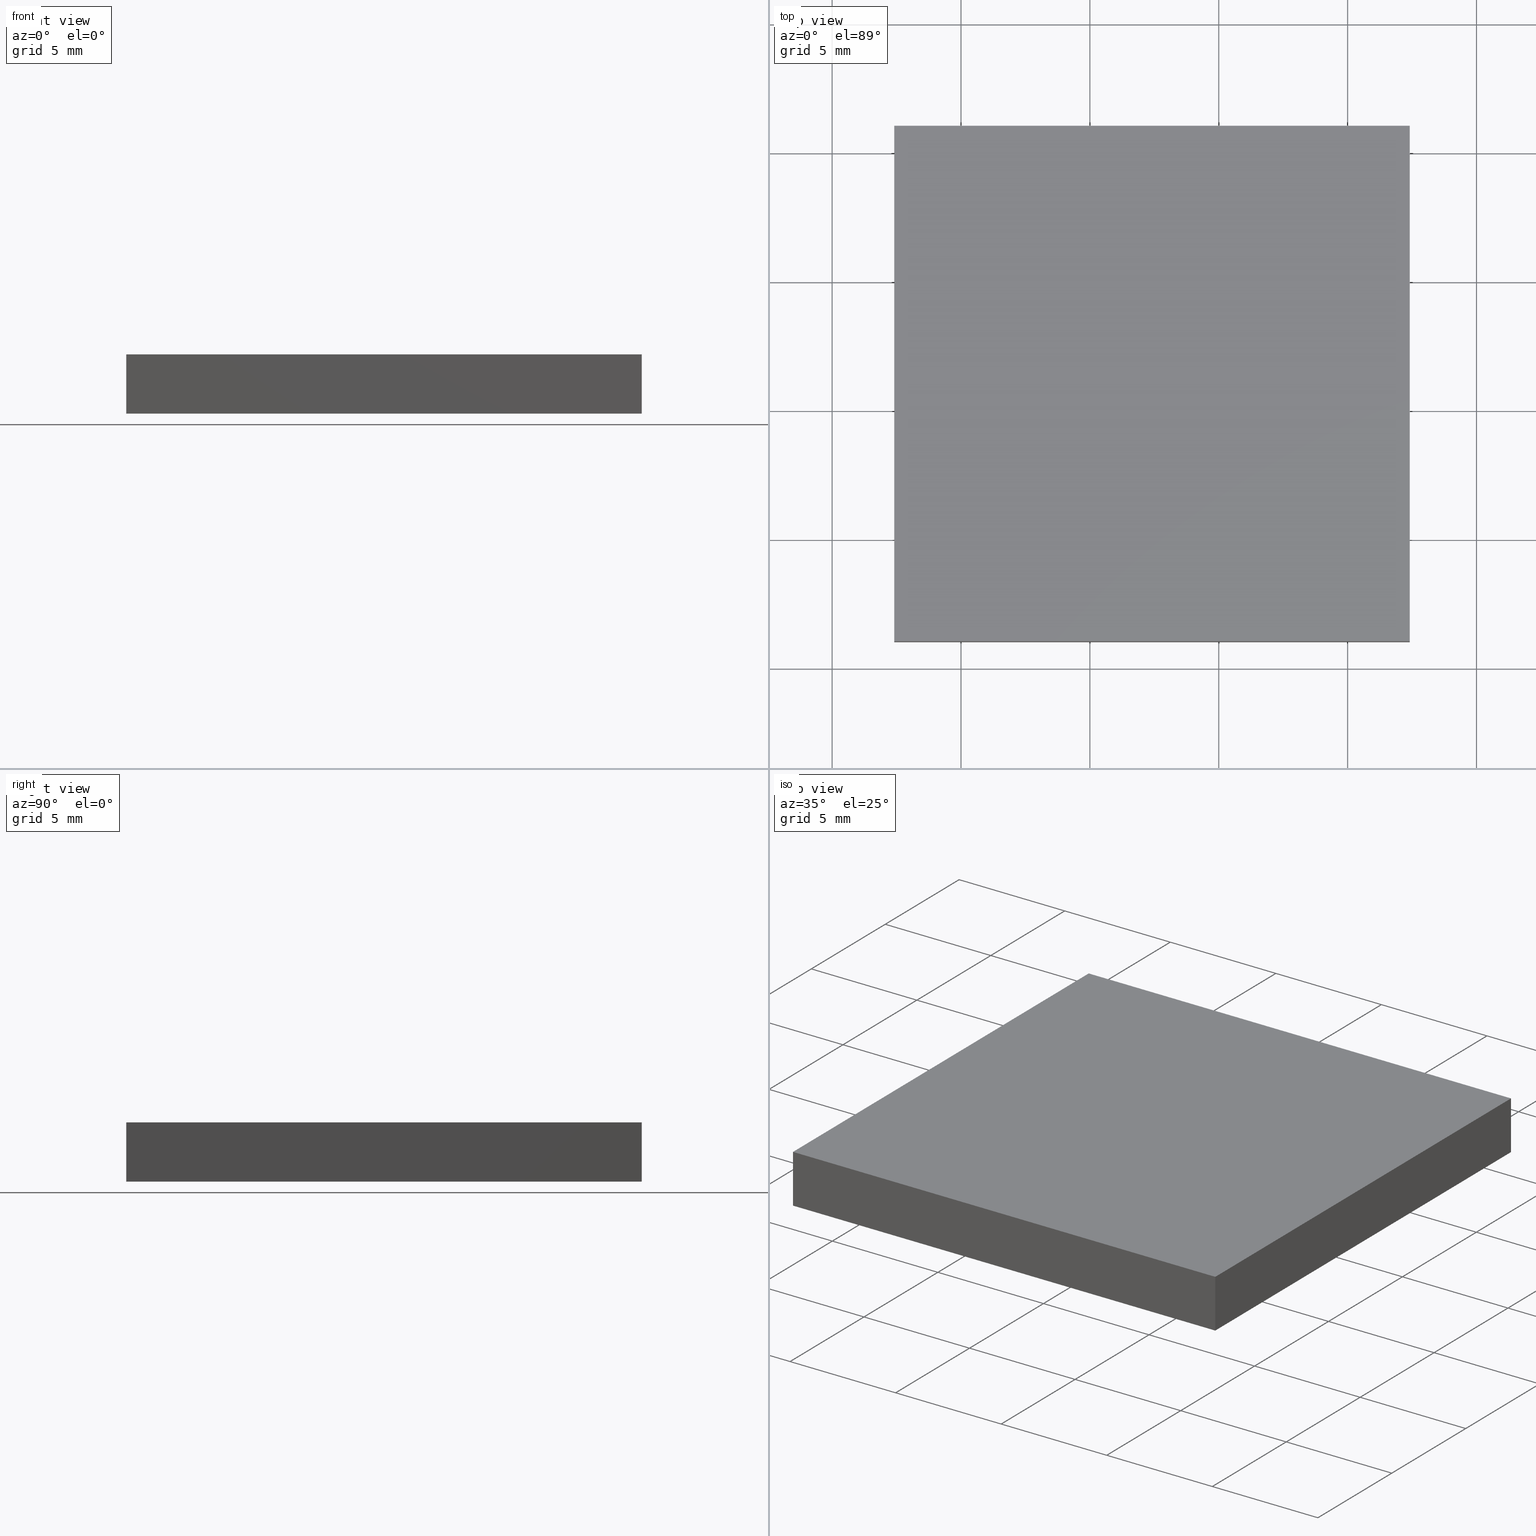
[diagram: canonical four-view strip — front | top / right | iso, engineering-drawing reading convention]
A machine part, canonical four-view strip (front | top / right | iso — engineering-drawing reading convention). The complete STEP part file that produces these views, byte-faithful:
ISO-10303-21;
HEADER;
FILE_DESCRIPTION (( 'STEP AP214' ),
    '1' );
FILE_NAME ('302514.STEP',
    '2019-08-13T05:52:42',
    ( '' ),
    ( '' ),
    'SwSTEP 2.0',
    'SolidWorks 2016',
    '' );
FILE_SCHEMA (( 'AUTOMOTIVE_DESIGN' ));
ENDSEC;

DATA;
#1 = EDGE_LOOP ( 'NONE', ( #185, #6, #113, #73 ) ) ;
#2 = SURFACE_SIDE_STYLE ('',( #39 ) ) ;
#3 = LINE ( 'NONE', #81, #89 ) ;
#4 = ORIENTED_EDGE ( 'NONE', *, *, #176, .T. ) ;
#5 = EDGE_CURVE ( 'NONE', #150, #104, #40, .T. ) ;
#6 = ORIENTED_EDGE ( 'NONE', *, *, #5, .F. ) ;
#7 = MANIFOLD_SOLID_BREP ( '͹̨-����1', #140 ) ;
#8 = STYLED_ITEM ( 'NONE', ( #120 ), #7 ) ;
#9 = VECTOR ( 'NONE', #17, 1000.000000000000000 ) ;
#10 = FILL_AREA_STYLE_COLOUR ( '', #48 ) ;
#11 = EDGE_CURVE ( 'NONE', #69, #56, #146, .T. ) ;
#12 = ORIENTED_EDGE ( 'NONE', *, *, #182, .T. ) ;
#13 = CARTESIAN_POINT ( 'NONE',  ( 82.40998929485572000, 31.04216122301770000, 0.0000000000000000000 ) ) ;
#14 = CARTESIAN_POINT ( 'NONE',  ( 82.40998929485570600, 51.04216122301769300, 2.299999999999999800 ) ) ;
#15 = UNCERTAINTY_MEASURE_WITH_UNIT (LENGTH_MEASURE( 1.000000000000000100E-005 ), #83, 'distance_accuracy_value', 'NONE');
#16 = DIRECTION ( 'NONE',  ( 1.000000000000000000, 0.0000000000000000000, 0.0000000000000000000 ) ) ;
#17 = DIRECTION ( 'NONE',  ( -0.0000000000000000000, -0.0000000000000000000, -1.000000000000000000 ) ) ;
#18 = PLANE ( 'NONE',  #110 ) ;
#19 = VECTOR ( 'NONE', #16, 1000.000000000000000 ) ;
#20 =( NAMED_UNIT ( * ) SI_UNIT ( $, .STERADIAN. ) SOLID_ANGLE_UNIT ( ) );
#21 = EDGE_LOOP ( 'NONE', ( #160, #100, #132, #34 ) ) ;
#22 = PRESENTATION_LAYER_ASSIGNMENT (  '', '', ( #187 ) ) ;
#23 =( NAMED_UNIT ( * ) PLANE_ANGLE_UNIT ( ) SI_UNIT ( $, .RADIAN. ) );
#24 = ORIENTED_EDGE ( 'NONE', *, *, #5, .T. ) ;
#25 = EDGE_CURVE ( 'NONE', #163, #158, #131, .T. ) ;
#26 = PRODUCT_DEFINITION_FORMATION_WITH_SPECIFIED_SOURCE ( '�κ�', '', #148, .NOT_KNOWN. ) ;
#27 = EDGE_LOOP ( 'NONE', ( #12, #129, #103, #53 ) ) ;
#28 = VERTEX_POINT ( 'NONE', #55 ) ;
#29 = DIRECTION ( 'NONE',  ( -1.000000000000000000, -6.938893903907232300E-016, 0.0000000000000000000 ) ) ;
#30 = DIRECTION ( 'NONE',  ( 1.000000000000000000, 0.0000000000000000000, 0.0000000000000000000 ) ) ;
#31 = VECTOR ( 'NONE', #96, 1000.000000000000000 ) ;
#32 = CARTESIAN_POINT ( 'NONE',  ( 62.40998929485574100, 31.04216122301770000, 0.0000000000000000000 ) ) ;
#33 = APPLICATION_PROTOCOL_DEFINITION ( 'draft international standard', 'automotive_design', 1998, #97 ) ;
#34 = ORIENTED_EDGE ( 'NONE', *, *, #135, .T. ) ;
#35 = CARTESIAN_POINT ( 'NONE',  ( 62.40998929485574100, 31.04216122301770000, 2.299999999999999800 ) ) ;
#36 = ORIENTED_EDGE ( 'NONE', *, *, #25, .F. ) ;
#37 = AXIS2_PLACEMENT_3D ( 'NONE', #152, #136, #122 ) ;
#38 = VECTOR ( 'NONE', #57, 1000.000000000000000 ) ;
#39 = SURFACE_STYLE_FILL_AREA ( #171 ) ;
#40 = LINE ( 'NONE', #93, #197 ) ;
#41 = CARTESIAN_POINT ( 'NONE',  ( 62.40998929485572700, 51.04216122301768600, 0.0000000000000000000 ) ) ;
#42 = CARTESIAN_POINT ( 'NONE',  ( 62.40998929485572700, 51.04216122301768600, 2.299999999999999800 ) ) ;
#43 = FACE_OUTER_BOUND ( 'NONE', #99, .T. ) ;
#44 = DIRECTION ( 'NONE',  ( -0.0000000000000000000, -0.0000000000000000000, -1.000000000000000000 ) ) ;
#45 = PRESENTATION_LAYER_ASSIGNMENT (  '', '', ( #8 ) ) ;
#46 = DIRECTION ( 'NONE',  ( -1.000000000000000000, -3.469446951953617100E-016, -0.0000000000000000000 ) ) ;
#47 = VECTOR ( 'NONE', #166, 1000.000000000000000 ) ;
#48 = COLOUR_RGB ( '',1.000000000000000000, 1.000000000000000000, 1.000000000000000000 ) ;
#49 =( LENGTH_UNIT ( ) NAMED_UNIT ( * ) SI_UNIT ( .MILLI., .METRE. ) );
#50 = UNCERTAINTY_MEASURE_WITH_UNIT (LENGTH_MEASURE( 1.000000000000000100E-005 ), #118, 'distance_accuracy_value', 'NONE');
#51 = EDGE_CURVE ( 'NONE', #104, #163, #52, .T. ) ;
#52 = LINE ( 'NONE', #94, #47 ) ;
#53 = ORIENTED_EDGE ( 'NONE', *, *, #88, .T. ) ;
#54 = ADVANCED_FACE ( 'NONE', ( #172 ), #198, .T. ) ;
#55 = CARTESIAN_POINT ( 'NONE',  ( 82.40998929485570600, 51.04216122301769300, 2.299999999999999800 ) ) ;
#56 = VERTEX_POINT ( 'NONE', #105 ) ;
#57 = DIRECTION ( 'NONE',  ( -1.000000000000000000, -3.469446951953617100E-016, -0.0000000000000000000 ) ) ;
#58 = PRODUCT_DEFINITION_SHAPE ( 'NONE', 'NONE',  #144 ) ;
#59 = FACE_OUTER_BOUND ( 'NONE', #27, .T. ) ;
#60 = DIRECTION ( 'NONE',  ( 6.938893903907232300E-016, -1.000000000000000000, 0.0000000000000000000 ) ) ;
#61 = CARTESIAN_POINT ( 'NONE',  ( 0.0000000000000000000, 0.0000000000000000000, 0.0000000000000000000 ) ) ;
#62 = DIRECTION ( 'NONE',  ( 3.469446951953617100E-016, -1.000000000000000000, 0.0000000000000000000 ) ) ;
#63 =( NAMED_UNIT ( * ) SI_UNIT ( $, .STERADIAN. ) SOLID_ANGLE_UNIT ( ) );
#64 =( GEOMETRIC_REPRESENTATION_CONTEXT ( 3 ) GLOBAL_UNCERTAINTY_ASSIGNED_CONTEXT ( ( #50 ) ) GLOBAL_UNIT_ASSIGNED_CONTEXT ( ( #118, #116, #130 ) ) REPRESENTATION_CONTEXT ( 'NONE', 'WORKASPACE' ) );
#65 = SURFACE_STYLE_USAGE ( .BOTH. , #2 ) ;
#66 = DIRECTION ( 'NONE',  ( -0.0000000000000000000, -0.0000000000000000000, -1.000000000000000000 ) ) ;
#67 = VECTOR ( 'NONE', #153, 1000.000000000000000 ) ;
#68 = MECHANICAL_DESIGN_GEOMETRIC_PRESENTATION_REPRESENTATION (  '', ( #8 ), #64 ) ;
#69 = VERTEX_POINT ( 'NONE', #184 ) ;
#70 = AXIS2_PLACEMENT_3D ( 'NONE', #14, #29, #60 ) ;
#71 = SHAPE_DEFINITION_REPRESENTATION ( #58, #112 ) ;
#72 = AXIS2_PLACEMENT_3D ( 'NONE', #61, #128, #186 ) ;
#73 = ORIENTED_EDGE ( 'NONE', *, *, #194, .T. ) ;
#74 = AXIS2_PLACEMENT_3D ( 'NONE', #196, #95, #151 ) ;
#75 = CARTESIAN_POINT ( 'NONE',  ( 82.40998929485570600, 51.04216122301769300, 0.0000000000000000000 ) ) ;
#76 = CARTESIAN_POINT ( 'NONE',  ( 62.40998929485572700, 51.04216122301768600, 2.299999999999999800 ) ) ;
#77 = LINE ( 'NONE', #35, #161 ) ;
#78 = CARTESIAN_POINT ( 'NONE',  ( 82.40998929485570600, 51.04216122301769300, 2.299999999999999800 ) ) ;
#79 = ORIENTED_EDGE ( 'NONE', *, *, #135, .F. ) ;
#80 = EDGE_CURVE ( 'NONE', #142, #104, #159, .T. ) ;
#81 = CARTESIAN_POINT ( 'NONE',  ( 62.40998929485572700, 51.04216122301768600, 2.299999999999999800 ) ) ;
#82 = EDGE_LOOP ( 'NONE', ( #180, #170, #79, #4 ) ) ;
#83 =( LENGTH_UNIT ( ) NAMED_UNIT ( * ) SI_UNIT ( .MILLI., .METRE. ) );
#84 = APPLICATION_PROTOCOL_DEFINITION ( 'draft international standard', 'automotive_design', 1998, #156 ) ;
#85 = PRODUCT_RELATED_PRODUCT_CATEGORY ( 'part', '', ( #148 ) ) ;
#86 = SURFACE_STYLE_FILL_AREA ( #147 ) ;
#87 = ADVANCED_FACE ( 'NONE', ( #119 ), #137, .F. ) ;
#88 = EDGE_CURVE ( 'NONE', #69, #158, #200, .T. ) ;
#89 = VECTOR ( 'NONE', #46, 1000.000000000000000 ) ;
#90 = VECTOR ( 'NONE', #145, 1000.000000000000000 ) ;
#91 = SURFACE_SIDE_STYLE ('',( #86 ) ) ;
#92 = EDGE_LOOP ( 'NONE', ( #175, #36, #109, #155 ) ) ;
#93 = CARTESIAN_POINT ( 'NONE',  ( 82.40998929485572000, 31.04216122301770000, 2.299999999999999800 ) ) ;
#94 = CARTESIAN_POINT ( 'NONE',  ( 82.40998929485570600, 51.04216122301769300, 0.0000000000000000000 ) ) ;
#95 = DIRECTION ( 'NONE',  ( -0.0000000000000000000, 0.0000000000000000000, 1.000000000000000000 ) ) ;
#96 = DIRECTION ( 'NONE',  ( 6.938893903907234300E-016, -1.000000000000000000, 0.0000000000000000000 ) ) ;
#97 = APPLICATION_CONTEXT ( 'automotive_design' ) ;
#98 = LINE ( 'NONE', #41, #31 ) ;
#99 = EDGE_LOOP ( 'NONE', ( #191, #127, #143, #24 ) ) ;
#100 = ORIENTED_EDGE ( 'NONE', *, *, #173, .T. ) ;
#101 = PRODUCT_DEFINITION_CONTEXT ( 'detailed design', #97, 'design' ) ;
#102 = SURFACE_STYLE_USAGE ( .BOTH. , #91 ) ;
#103 = ORIENTED_EDGE ( 'NONE', *, *, #11, .F. ) ;
#104 = VERTEX_POINT ( 'NONE', #13 ) ;
#105 = CARTESIAN_POINT ( 'NONE',  ( 62.40998929485574100, 31.04216122301770000, 2.299999999999999800 ) ) ;
#106 = CARTESIAN_POINT ( 'NONE',  ( 82.40998929485570600, 51.04216122301769300, 2.299999999999999800 ) ) ;
#107 = PLANE ( 'NONE',  #164 ) ;
#108 = FACE_OUTER_BOUND ( 'NONE', #82, .T. ) ;
#109 = ORIENTED_EDGE ( 'NONE', *, *, #51, .F. ) ;
#110 = AXIS2_PLACEMENT_3D ( 'NONE', #76, #124, #168 ) ;
#111 = AXIS2_PLACEMENT_3D ( 'NONE', #149, #201, #30 ) ;
#112 = ADVANCED_BREP_SHAPE_REPRESENTATION ( '302514', ( #7, #72 ), #126 ) ;
#113 = ORIENTED_EDGE ( 'NONE', *, *, #173, .F. ) ;
#114 = ADVANCED_FACE ( 'NONE', ( #43 ), #121, .F. ) ;
#115 = ADVANCED_FACE ( 'NONE', ( #59 ), #18, .F. ) ;
#116 =( NAMED_UNIT ( * ) PLANE_ANGLE_UNIT ( ) SI_UNIT ( $, .RADIAN. ) );
#117 = VECTOR ( 'NONE', #183, 1000.000000000000000 ) ;
#118 =( LENGTH_UNIT ( ) NAMED_UNIT ( * ) SI_UNIT ( .MILLI., .METRE. ) );
#119 = FACE_OUTER_BOUND ( 'NONE', #1, .T. ) ;
#120 = PRESENTATION_STYLE_ASSIGNMENT (( #102 ) ) ;
#121 = PLANE ( 'NONE',  #70 ) ;
#122 = DIRECTION ( 'NONE',  ( 0.0000000000000000000, -0.0000000000000000000, 1.000000000000000000 ) ) ;
#123 =( GEOMETRIC_REPRESENTATION_CONTEXT ( 3 ) GLOBAL_UNCERTAINTY_ASSIGNED_CONTEXT ( ( #177 ) ) GLOBAL_UNIT_ASSIGNED_CONTEXT ( ( #49, #23, #20 ) ) REPRESENTATION_CONTEXT ( 'NONE', 'WORKASPACE' ) );
#124 = DIRECTION ( 'NONE',  ( 1.000000000000000000, 6.938893903907234300E-016, -0.0000000000000000000 ) ) ;
#125 = PLANE ( 'NONE',  #111 ) ;
#126 =( GEOMETRIC_REPRESENTATION_CONTEXT ( 3 ) GLOBAL_UNCERTAINTY_ASSIGNED_CONTEXT ( ( #15 ) ) GLOBAL_UNIT_ASSIGNED_CONTEXT ( ( #83, #202, #63 ) ) REPRESENTATION_CONTEXT ( 'NONE', 'WORKASPACE' ) );
#127 = ORIENTED_EDGE ( 'NONE', *, *, #176, .F. ) ;
#128 = DIRECTION ( 'NONE',  ( 0.0000000000000000000, 0.0000000000000000000, 1.000000000000000000 ) ) ;
#129 = ORIENTED_EDGE ( 'NONE', *, *, #194, .F. ) ;
#130 =( NAMED_UNIT ( * ) SI_UNIT ( $, .STERADIAN. ) SOLID_ANGLE_UNIT ( ) );
#131 = LINE ( 'NONE', #179, #38 ) ;
#132 = ORIENTED_EDGE ( 'NONE', *, *, #190, .T. ) ;
#133 = CARTESIAN_POINT ( 'NONE',  ( 62.40998929485572700, 51.04216122301768600, 2.299999999999999800 ) ) ;
#134 = MECHANICAL_DESIGN_GEOMETRIC_PRESENTATION_REPRESENTATION (  '', ( #187 ), #123 ) ;
#135 = EDGE_CURVE ( 'NONE', #28, #69, #3, .T. ) ;
#136 = DIRECTION ( 'NONE',  ( 0.0000000000000000000, 1.000000000000000000, 0.0000000000000000000 ) ) ;
#137 = PLANE ( 'NONE',  #37 ) ;
#138 = CARTESIAN_POINT ( 'NONE',  ( 62.40998929485572700, 51.04216122301768600, 2.299999999999999800 ) ) ;
#139 = LINE ( 'NONE', #106, #9 ) ;
#140 = CLOSED_SHELL ( 'NONE', ( #115, #87, #114, #192, #54, #178 ) ) ;
#141 = PRODUCT_CONTEXT ( 'NONE', #156, 'mechanical' ) ;
#142 = VERTEX_POINT ( 'NONE', #32 ) ;
#143 = ORIENTED_EDGE ( 'NONE', *, *, #190, .F. ) ;
#144 = PRODUCT_DEFINITION ( 'δ֪', '', #26, #101 ) ;
#145 = DIRECTION ( 'NONE',  ( 6.938893903907234300E-016, -1.000000000000000000, 0.0000000000000000000 ) ) ;
#146 = LINE ( 'NONE', #133, #90 ) ;
#147 = FILL_AREA_STYLE ('',( #10 ) ) ;
#148 = PRODUCT ( '302514', '302514', '', ( #141 ) ) ;
#149 = CARTESIAN_POINT ( 'NONE',  ( 0.0000000000000000000, 0.0000000000000000000, 0.0000000000000000000 ) ) ;
#150 = VERTEX_POINT ( 'NONE', #167 ) ;
#151 = DIRECTION ( 'NONE',  ( 1.000000000000000000, 0.0000000000000000000, 0.0000000000000000000 ) ) ;
#152 = CARTESIAN_POINT ( 'NONE',  ( 62.40998929485574100, 31.04216122301770000, 2.299999999999999800 ) ) ;
#153 = DIRECTION ( 'NONE',  ( 1.000000000000000000, 0.0000000000000000000, 0.0000000000000000000 ) ) ;
#154 = FACE_OUTER_BOUND ( 'NONE', #92, .T. ) ;
#155 = ORIENTED_EDGE ( 'NONE', *, *, #80, .F. ) ;
#156 = APPLICATION_CONTEXT ( 'automotive_design' ) ;
#157 = LINE ( 'NONE', #181, #67 ) ;
#158 = VERTEX_POINT ( 'NONE', #199 ) ;
#159 = LINE ( 'NONE', #165, #19 ) ;
#160 = ORIENTED_EDGE ( 'NONE', *, *, #11, .T. ) ;
#161 = VECTOR ( 'NONE', #66, 1000.000000000000000 ) ;
#162 = PRESENTATION_STYLE_ASSIGNMENT (( #65 ) ) ;
#163 = VERTEX_POINT ( 'NONE', #75 ) ;
#164 = AXIS2_PLACEMENT_3D ( 'NONE', #138, #62, #169 ) ;
#165 = CARTESIAN_POINT ( 'NONE',  ( 62.40998929485574100, 31.04216122301770000, 0.0000000000000000000 ) ) ;
#166 = DIRECTION ( 'NONE',  ( -6.938893903907232300E-016, 1.000000000000000000, -0.0000000000000000000 ) ) ;
#167 = CARTESIAN_POINT ( 'NONE',  ( 82.40998929485572000, 31.04216122301770000, 2.299999999999999800 ) ) ;
#168 = DIRECTION ( 'NONE',  ( -6.938893903907234300E-016, 1.000000000000000000, 0.0000000000000000000 ) ) ;
#169 = DIRECTION ( 'NONE',  ( 1.000000000000000000, 3.469446951953617100E-016, 0.0000000000000000000 ) ) ;
#170 = ORIENTED_EDGE ( 'NONE', *, *, #88, .F. ) ;
#171 = FILL_AREA_STYLE ('',( #188 ) ) ;
#172 = FACE_OUTER_BOUND ( 'NONE', #21, .T. ) ;
#173 = EDGE_CURVE ( 'NONE', #56, #150, #157, .T. ) ;
#174 = LINE ( 'NONE', #78, #117 ) ;
#175 = ORIENTED_EDGE ( 'NONE', *, *, #182, .F. ) ;
#176 = EDGE_CURVE ( 'NONE', #28, #163, #139, .T. ) ;
#177 = UNCERTAINTY_MEASURE_WITH_UNIT (LENGTH_MEASURE( 1.000000000000000100E-005 ), #49, 'distance_accuracy_value', 'NONE');
#178 = ADVANCED_FACE ( 'NONE', ( #154 ), #125, .F. ) ;
#179 = CARTESIAN_POINT ( 'NONE',  ( 62.40998929485572700, 51.04216122301768600, 0.0000000000000000000 ) ) ;
#180 = ORIENTED_EDGE ( 'NONE', *, *, #25, .T. ) ;
#181 = CARTESIAN_POINT ( 'NONE',  ( 62.40998929485574100, 31.04216122301770000, 2.299999999999999800 ) ) ;
#182 = EDGE_CURVE ( 'NONE', #158, #142, #98, .T. ) ;
#183 = DIRECTION ( 'NONE',  ( -6.938893903907232300E-016, 1.000000000000000000, -0.0000000000000000000 ) ) ;
#184 = CARTESIAN_POINT ( 'NONE',  ( 62.40998929485572700, 51.04216122301768600, 2.299999999999999800 ) ) ;
#185 = ORIENTED_EDGE ( 'NONE', *, *, #80, .T. ) ;
#186 = DIRECTION ( 'NONE',  ( 1.000000000000000000, 0.0000000000000000000, 0.0000000000000000000 ) ) ;
#187 = STYLED_ITEM ( 'NONE', ( #162 ), #112 ) ;
#188 = FILL_AREA_STYLE_COLOUR ( '', #193 ) ;
#189 = VECTOR ( 'NONE', #44, 1000.000000000000000 ) ;
#190 = EDGE_CURVE ( 'NONE', #150, #28, #174, .T. ) ;
#191 = ORIENTED_EDGE ( 'NONE', *, *, #51, .T. ) ;
#192 = ADVANCED_FACE ( 'NONE', ( #108 ), #107, .F. ) ;
#193 = COLOUR_RGB ( '',1.000000000000000000, 1.000000000000000000, 1.000000000000000000 ) ;
#194 = EDGE_CURVE ( 'NONE', #56, #142, #77, .T. ) ;
#195 = DIRECTION ( 'NONE',  ( -0.0000000000000000000, -0.0000000000000000000, -1.000000000000000000 ) ) ;
#196 = CARTESIAN_POINT ( 'NONE',  ( 0.0000000000000000000, 0.0000000000000000000, 2.299999999999999800 ) ) ;
#197 = VECTOR ( 'NONE', #195, 1000.000000000000000 ) ;
#198 = PLANE ( 'NONE',  #74 ) ;
#199 = CARTESIAN_POINT ( 'NONE',  ( 62.40998929485572700, 51.04216122301768600, 0.0000000000000000000 ) ) ;
#200 = LINE ( 'NONE', #42, #189 ) ;
#201 = DIRECTION ( 'NONE',  ( -0.0000000000000000000, 0.0000000000000000000, 1.000000000000000000 ) ) ;
#202 =( NAMED_UNIT ( * ) PLANE_ANGLE_UNIT ( ) SI_UNIT ( $, .RADIAN. ) );
ENDSEC;
END-ISO-10303-21;
